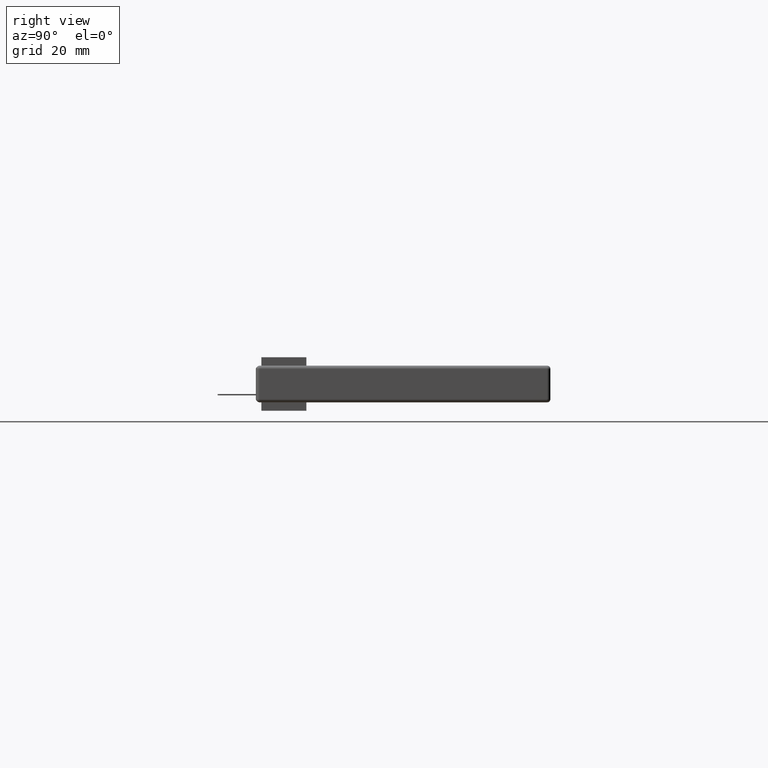
[diagram: clean part render]
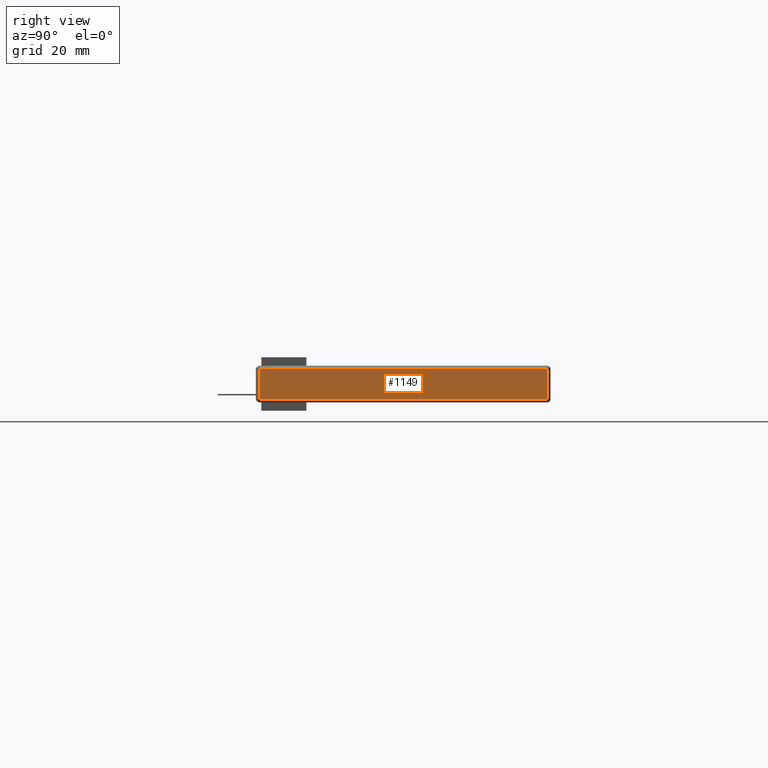
[diagram: same view with one face highlighted and labeled with its STEP entity id]
A machine part, right view. The second image highlights one B-rep face of the part: STEP entity #1149.
In plain terms, the highlighted planar face has unit normal (1, 0, -0).
Its self-contained STEP definition (entity closure, byte-faithful):
#485 = VERTEX_POINT ( 'NONE', #16023 ) ;
#570 = DIRECTION ( 'NONE',  ( -0.0000000000000000000, 1.000000000000000000, -0.0000000000000000000 ) ) ;
#728 = DIRECTION ( 'NONE',  ( 0.0000000000000000000, 0.0000000000000000000, 1.000000000000000000 ) ) ;
#1149 = ADVANCED_FACE ( 'NONE', ( #8338 ), #5666, .T. ) ;
#1686 = VERTEX_POINT ( 'NONE', #28137 ) ;
#3305 = VECTOR ( 'NONE', #23084, 39.37007874015748143 ) ;
#4840 = EDGE_CURVE ( 'NONE', #19654, #12411, #29645, .T. ) ;
#5466 = DIRECTION ( 'NONE',  ( -0.0000000000000000000, -0.0000000000000000000, -1.000000000000000000 ) ) ;
#5524 = DIRECTION ( 'NONE',  ( -1.000000000000000000, 0.0000000000000000000, 0.0000000000000000000 ) ) ;
#5666 = PLANE ( 'NONE',  #6471 ) ;
#6315 = CARTESIAN_POINT ( 'NONE',  ( 0.0000000000000000000, 0.02999999999999998848, -0.02999999999999999889 ) ) ;
#6471 = AXIS2_PLACEMENT_3D ( 'NONE', #20447, #5524, #728 ) ;
#7108 = ORIENTED_EDGE ( 'NONE', *, *, #4840, .T. ) ;
#7260 = EDGE_CURVE ( 'NONE', #485, #1686, #28171, .T. ) ;
#8338 = FACE_OUTER_BOUND ( 'NONE', #13654, .T. ) ;
#9424 = ORIENTED_EDGE ( 'NONE', *, *, #7260, .T. ) ;
#10419 = CARTESIAN_POINT ( 'NONE',  ( 0.0000000000000000000, 2.750000000000000000, -0.02999999999999999889 ) ) ;
#11285 = ORIENTED_EDGE ( 'NONE', *, *, #30951, .T. ) ;
#12295 = VECTOR ( 'NONE', #5466, 39.37007874015748143 ) ;
#12411 = VERTEX_POINT ( 'NONE', #14677 ) ;
#13654 = EDGE_LOOP ( 'NONE', ( #9424, #11285, #7108, #27639 ) ) ;
#14112 = VECTOR ( 'NONE', #570, 39.37007874015748143 ) ;
#14677 = CARTESIAN_POINT ( 'NONE',  ( 0.0000000000000000000, 2.719999999999999751, -0.02999999999999999889 ) ) ;
#15605 = CARTESIAN_POINT ( 'NONE',  ( 0.0000000000000000000, 0.02999999999999998848, -0.3430000000000000271 ) ) ;
#16023 = CARTESIAN_POINT ( 'NONE',  ( 0.0000000000000000000, 2.719999999999999751, -0.3130000000000000004 ) ) ;
#19654 = VERTEX_POINT ( 'NONE', #6315 ) ;
#20238 = CARTESIAN_POINT ( 'NONE',  ( 0.0000000000000000000, 2.719999999999999751, -0.3430000000000000271 ) ) ;
#20447 = CARTESIAN_POINT ( 'NONE',  ( 0.0000000000000000000, 0.0000000000000000000, -0.3430000000000000271 ) ) ;
#20566 = LINE ( 'NONE', #15605, #3305 ) ;
#20885 = DIRECTION ( 'NONE',  ( 0.0000000000000000000, -1.000000000000000000, 0.0000000000000000000 ) ) ;
#23084 = DIRECTION ( 'NONE',  ( 0.0000000000000000000, 0.0000000000000000000, 1.000000000000000000 ) ) ;
#23415 = CARTESIAN_POINT ( 'NONE',  ( 0.0000000000000000000, 0.0000000000000000000, -0.3130000000000000004 ) ) ;
#23421 = VECTOR ( 'NONE', #20885, 39.37007874015748143 ) ;
#25771 = EDGE_CURVE ( 'NONE', #12411, #485, #27822, .T. ) ;
#27639 = ORIENTED_EDGE ( 'NONE', *, *, #25771, .T. ) ;
#27822 = LINE ( 'NONE', #20238, #12295 ) ;
#28137 = CARTESIAN_POINT ( 'NONE',  ( 0.0000000000000000000, 0.02999999999999998848, -0.3130000000000000004 ) ) ;
#28171 = LINE ( 'NONE', #23415, #23421 ) ;
#29645 = LINE ( 'NONE', #10419, #14112 ) ;
#30951 = EDGE_CURVE ( 'NONE', #1686, #19654, #20566, .T. ) ;